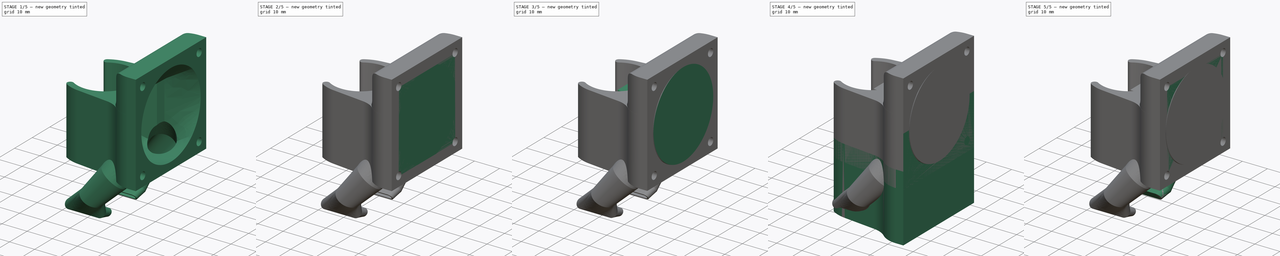
[diagram: build sequence overview — one tinted view per stage of 5, left to right]
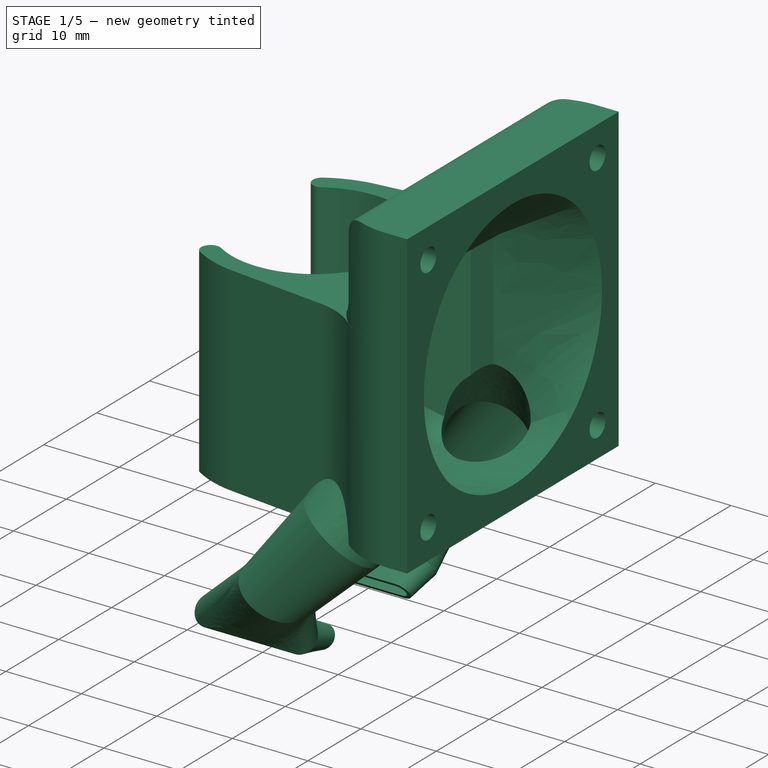
[diagram: stage 1 of 5 — iso view after this stage's code; geometry added in this stage tinted green]
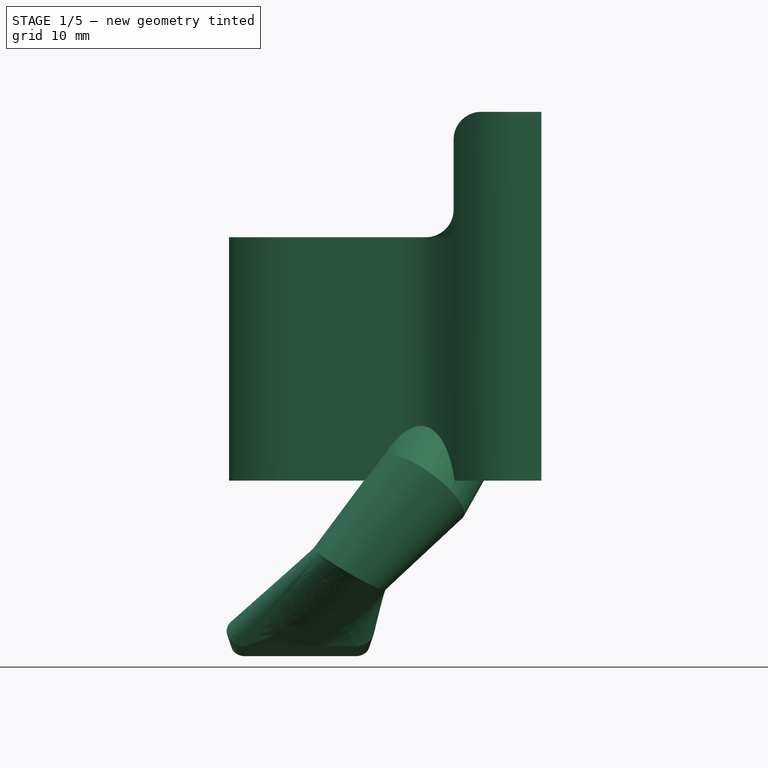
[diagram: stage 1 of 5 — front view after this stage's code; geometry added in this stage tinted green]
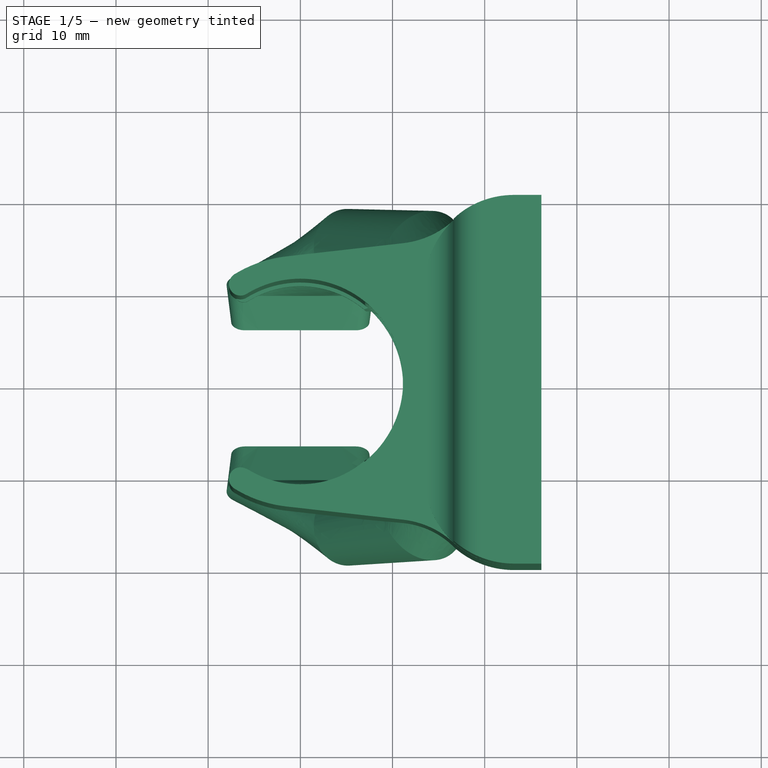
[diagram: stage 1 of 5 — top view after this stage's code; geometry added in this stage tinted green]
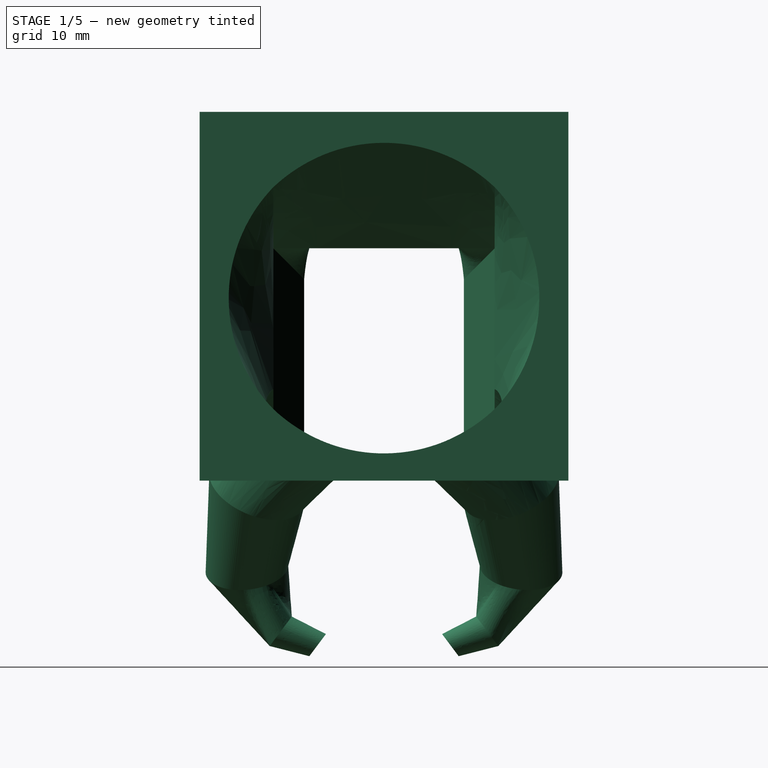
[diagram: stage 1 of 5 — right view after this stage's code; geometry added in this stage tinted green]
FCSTD DOCUMENT  (FreeCAD 0.15R4532 (Git))
Label: E3Dv6_40mmDuctedShroud_V2
License: CC-BY 3.0
LicenseURL: http://creativecommons.org/licenses/by/3.0/
objects: Part::Feature×19, Sketcher::SketchObject×18, Part::MultiFuse×7, App::DocumentObjectGroup×6, Part::Cut×5, PartDesign::Pad×3, Part::Loft×3, PartDesign::Fillet×1, PartDesign::Pocket×1
note: 61 computed .brp shape members not serialized (recipe doc carries the construction recipe); baked Part::Feature solids carry a one-line shape summary decoded from their .brp

FEATURE [App::DocumentObjectGroup] Group004  label="Duct+RightNozzle"
  Group = -> [Cut002]
FEATURE [Part::Feature] Part__Mirroring005  label="LeftNozzleOuter002"
  shape: bbox 32.47 x 24.49 x 37.15 mm, 46 faces (baked)
FEATURE [Part::Feature] Loft009  label="RightNozzleOuter002"
  shape: bbox 32.47 x 24.49 x 37.15 mm, 46 faces (baked)
FEATURE [Part::Feature] Part__Mirroring006  label="LeftNozzleInner002"
  shape: bbox 31.53 x 23.47 x 36.35 mm, 46 faces (baked)
FEATURE [Part::Feature] Loft010  label="RightNozzleInner002"
  shape: bbox 31.53 x 23.47 x 36.35 mm, 46 faces (baked)
FEATURE [Part::Feature] Pocket004  label="MainBlock007"
  shape: bbox 33.89 x 40 x 40 mm, 36 faces (baked)
FEATURE [Part::Feature] Loft011  label="MainOpening004"
  shape: bbox 20.5 x 34.77 x 37.37 mm, 24 faces (baked)
FEATURE [Part::MultiFuse] Fusion005
  Shapes = -> [Part__Mirroring005,Loft009,Pocket004]
FEATURE [Part::Cut] Cut003
  Base = -> Fusion005
  Tool = -> Loft011
FEATURE [Part::MultiFuse] Fusion006
  Shapes = -> [Part__Mirroring006,Loft010]
FEATURE [Part::Cut] Cut004  label="Duct+DualNozzle001"
  Base = -> Cut003
  Tool = -> Fusion006
FEATURE [App::DocumentObjectGroup] Group005  label="Duct+DualNozzle"
  Group = -> [Cut004]
FEATURE [Part::Feature] Part__Mirroring007  label="LeftNozzleInner"
  shape: bbox 31.53 x 23.47 x 36.35 mm, 46 faces (baked)
FEATURE [Part::Feature] Part__Mirroring008  label="LeftNozzleOuter"
  shape: bbox 33.69 x 25.68 x 38.16 mm, 46 faces (baked)
FEATURE [App::DocumentObjectGroup] Group  label="BaseParts"
  Group = -> [Loft003,Loft002,Group001,Pocket,Loft,Part__Mirroring007,Part__Mirroring008]
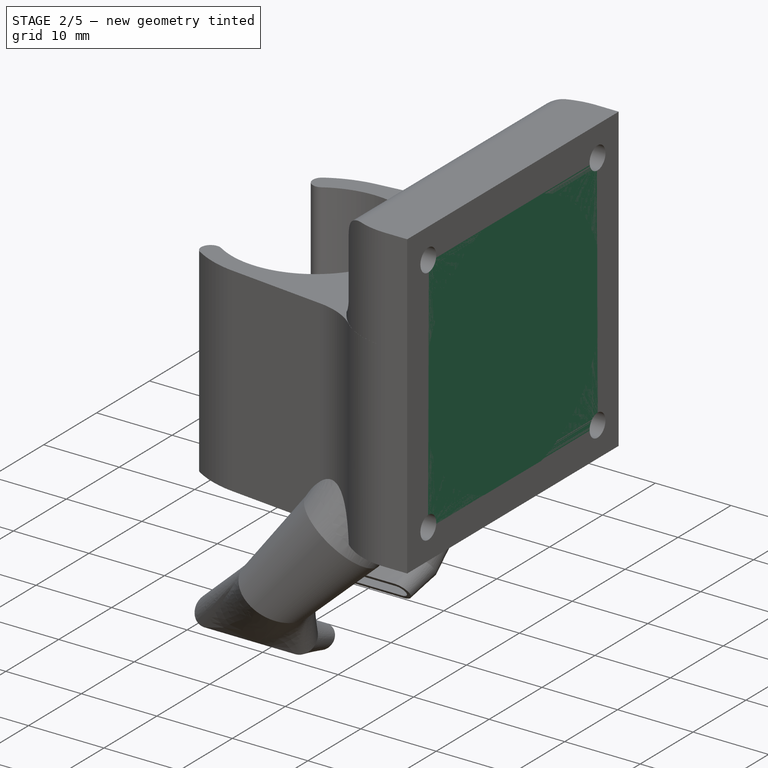
[diagram: stage 2 of 5 — iso view after this stage's code; geometry added in this stage tinted green]
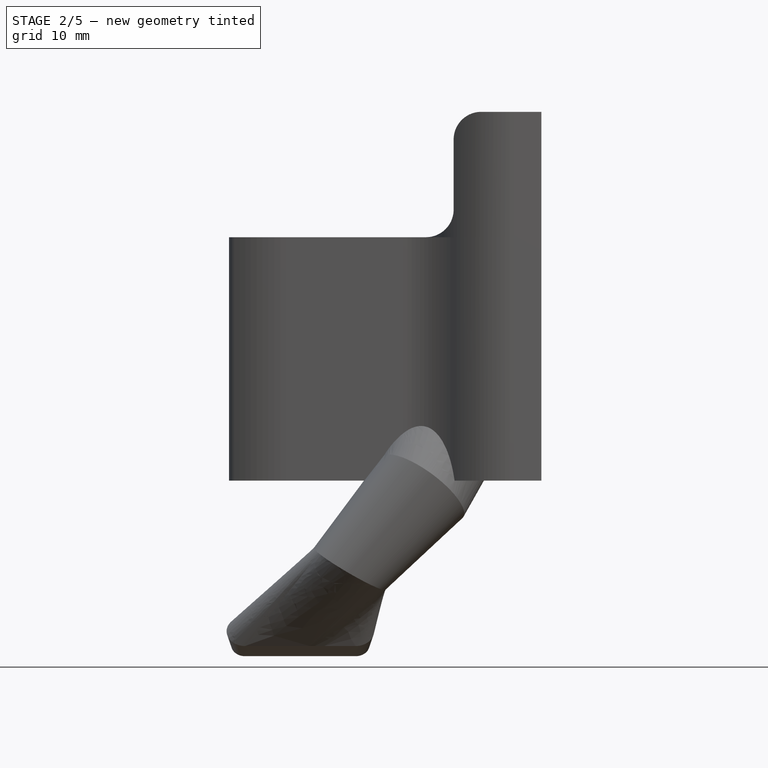
[diagram: stage 2 of 5 — front view after this stage's code; geometry added in this stage tinted green]
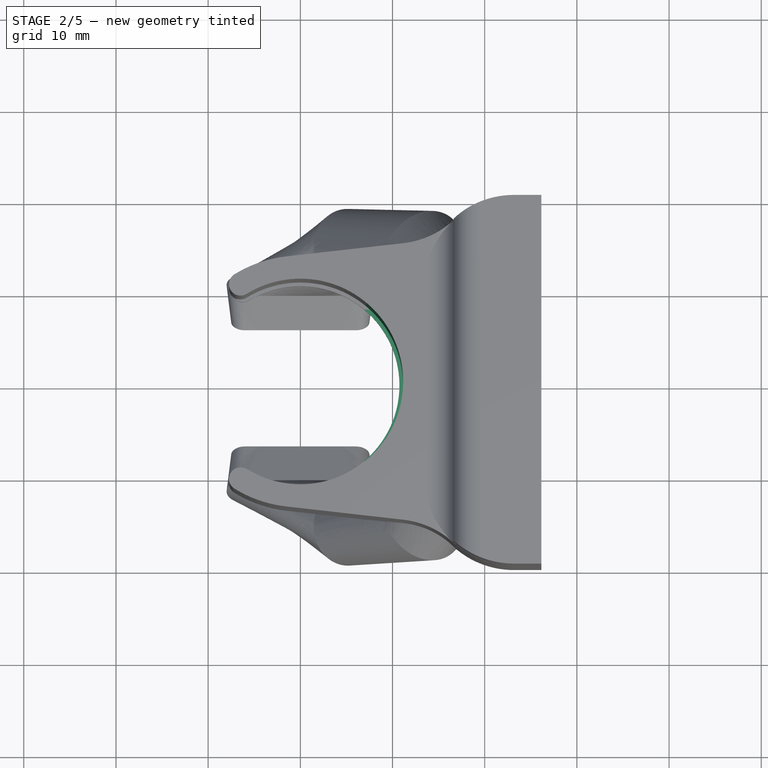
[diagram: stage 2 of 5 — top view after this stage's code; geometry added in this stage tinted green]
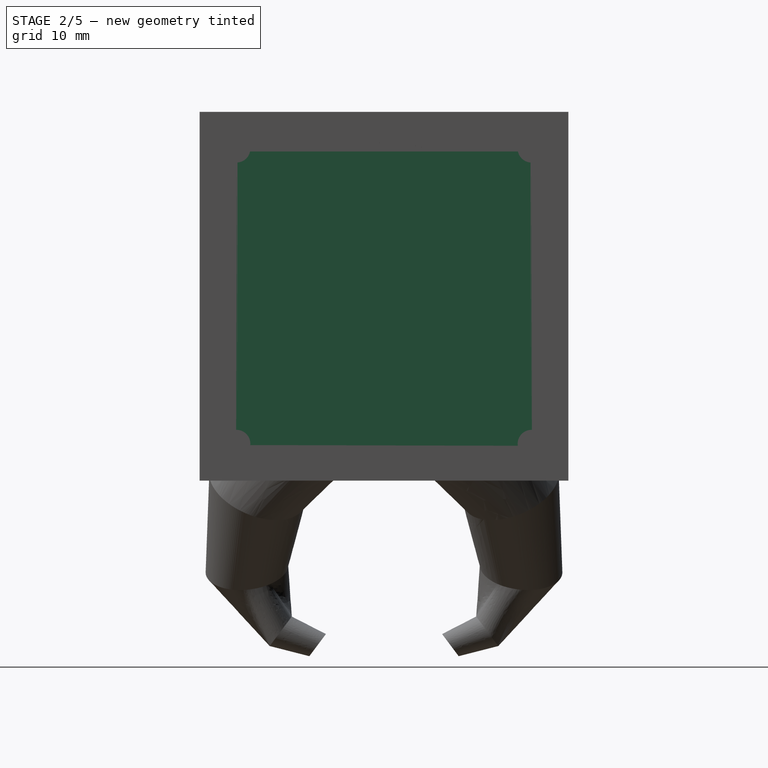
[diagram: stage 2 of 5 — right view after this stage's code; geometry added in this stage tinted green]
FEATURE [Part::MultiFuse] Fusion002
  Shapes = -> [Part__Mirroring004,Pocket002]
FEATURE [App::DocumentObjectGroup] Group003  label="Duct+LeftNozzle"
  Group = -> [Cut001]
FEATURE [Part::Feature] Loft006  label="MainOpening003"
  shape: bbox 20.5 x 34.77 x 37.37 mm, 24 faces (baked)
FEATURE [Part::Feature] Pocket003  label="MainBlock006"
  shape: bbox 33.89 x 40 x 40 mm, 36 faces (baked)
FEATURE [Part::Feature] Loft007  label="RightNozzleInner001"
  shape: bbox 31.53 x 23.47 x 36.35 mm, 46 faces (baked)
FEATURE [Part::Feature] Loft008  label="RightNozzleOuter001"
  shape: bbox 32.47 x 24.49 x 37.15 mm, 46 faces (baked)
FEATURE [Part::MultiFuse] Fusion003
  Shapes = -> [Loft006,Loft007]
FEATURE [Part::MultiFuse] Fusion004
  Shapes = -> [Loft008,Pocket003]
FEATURE [Part::Cut] Cut002  label="Duct+RightNozzle001"
  Base = -> Fusion004
  Tool = -> Fusion003
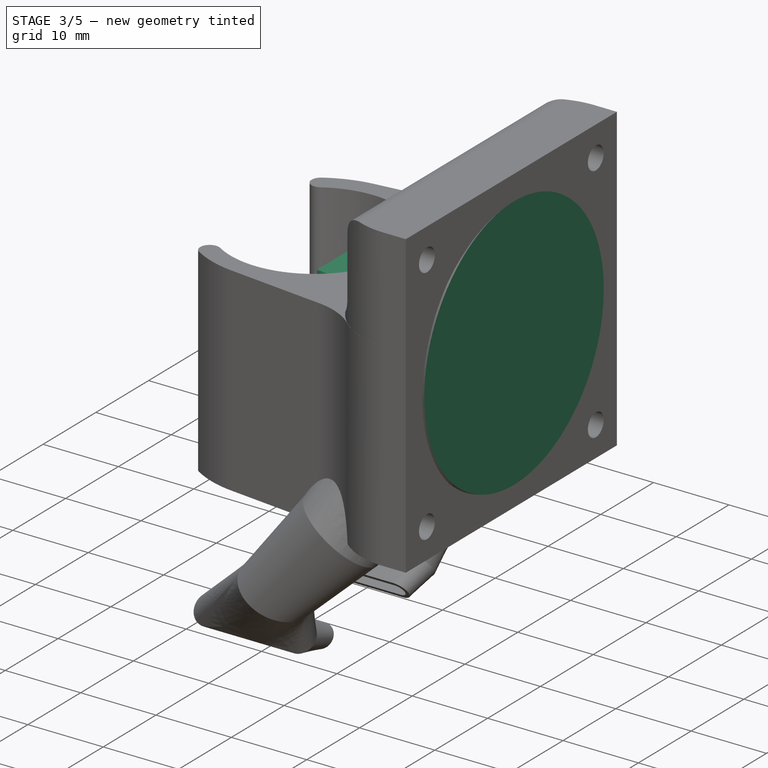
[diagram: stage 3 of 5 — iso view after this stage's code; geometry added in this stage tinted green]
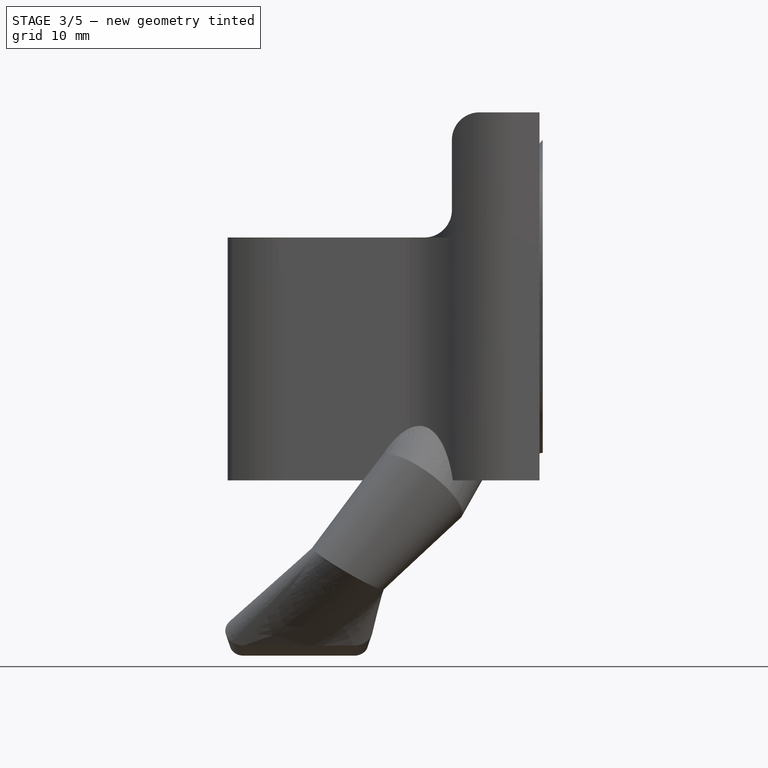
[diagram: stage 3 of 5 — front view after this stage's code; geometry added in this stage tinted green]
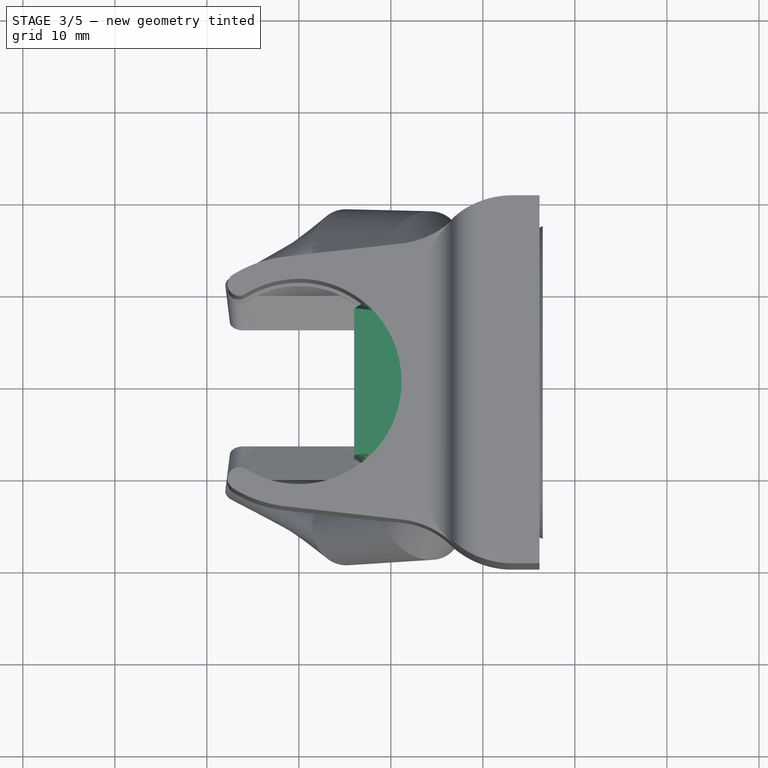
[diagram: stage 3 of 5 — top view after this stage's code; geometry added in this stage tinted green]
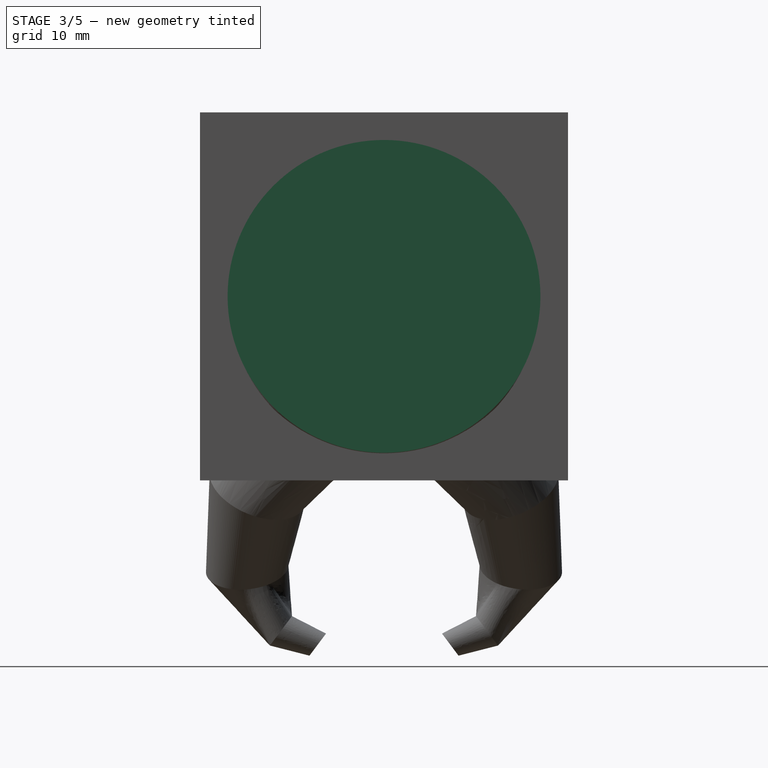
[diagram: stage 3 of 5 — right view after this stage's code; geometry added in this stage tinted green]
FEATURE [Part::Feature] Pocket001  label="MainBlock004"
  shape: bbox 33.89 x 40 x 40 mm, 36 faces (baked)
FEATURE [Sketcher::SketchObject] Sketch004
  Placement = pos=(26.5,0,0) rot=(0.57735,0.57735,0.57735;2.0944rad)
  sketch-geometry (1):
    g0: Circle CenterX=0 CenterY=20 CenterZ=0 NormalX=0 NormalY=0 NormalZ=1 Radius=17
  constraints (3):
    c: PointOnObject(g0,g-2)
    c: DistanceY(g0) = 20
    c: Radius(g0) = 17
FEATURE [Sketcher::SketchObject] Sketch030
  Placement = pos=(15.15,0,0) rot=(0.57735,0.57735,0.57735;2.0944rad)
  sketch-geometry (5):
    g0: Circle [constr] CenterX=0 CenterY=13.2 CenterZ=0 NormalX=0 NormalY=0 NormalZ=1 Radius=12
    g1: LineSegment StartX=-12 StartY=25.2 StartZ=0 EndX=12 EndY=25.2 EndZ=0
    g2: LineSegment StartX=12 StartY=25.2 StartZ=0 EndX=12 EndY=1.2 EndZ=0
    g3: LineSegment StartX=12 StartY=1.2 StartZ=0 EndX=-12 EndY=1.2 EndZ=0
    g4: LineSegment StartX=-12 StartY=1.2 StartZ=0 EndX=-12 EndY=25.2 EndZ=0
  constraints (15):
    c: PointOnObject(g0,g-2)
    c: DistanceY(g0) = 13.2
    c: Radius(g0) = 12
    c: Coincident(g1,g2)
    c: Coincident(g2,g3)
    c: Coincident(g3,g4)
    c: Coincident(g4,g1)
    c: Horizontal(g1)
    c: Horizontal(g3)
    c: Vertical(g2)
    c: Vertical(g4)
    c: Tangent(g2,g0)
    c: Tangent(g3,g0)
    c: Tangent(g4,g0)
    c: Tangent(g1,g0)
FEATURE [Part::Loft] Loft  label="MainOpening"
  Closed = false
  Placement = pos=(0,0,19.75) rot=(0,0,1;0rad)
  Ruled = true
  Sections = -> [Sketch006,Sketch003,Sketch030,Sketch004]
  Solid = true
FEATURE [Part::Feature] Loft004  label="MainOpening001"
  shape: bbox 20.5 x 34.77 x 37.37 mm, 24 faces (baked)
FEATURE [Part::Cut] Cut  label="BasicDuct001"
  Base = -> Pocket001
  Tool = -> Loft004
FEATURE [App::DocumentObjectGroup] Group002  label="BasicDuct"
  Group = -> [Cut]
FEATURE [Part::Feature] Loft005  label="MainOpening002"
  shape: bbox 20.5 x 34.77 x 37.37 mm, 24 faces (baked)
FEATURE [Part::Feature] Pocket002  label="MainBlock005"
  shape: bbox 33.89 x 40 x 40 mm, 36 faces (baked)
FEATURE [Part::Feature] Part__Mirroring003  label="LeftNozzleInner001"
  shape: bbox 31.53 x 23.47 x 36.35 mm, 46 faces (baked)
FEATURE [Part::Feature] Part__Mirroring004  label="LeftNozzleOuter001"
  shape: bbox 32.47 x 24.49 x 37.15 mm, 46 faces (baked)
FEATURE [Part::MultiFuse] Fusion001
  Shapes = -> [Loft005,Part__Mirroring003]
FEATURE [Part::Cut] Cut001  label="Duct+LeftNozzle001"
  Base = -> Fusion002
  Tool = -> Fusion001
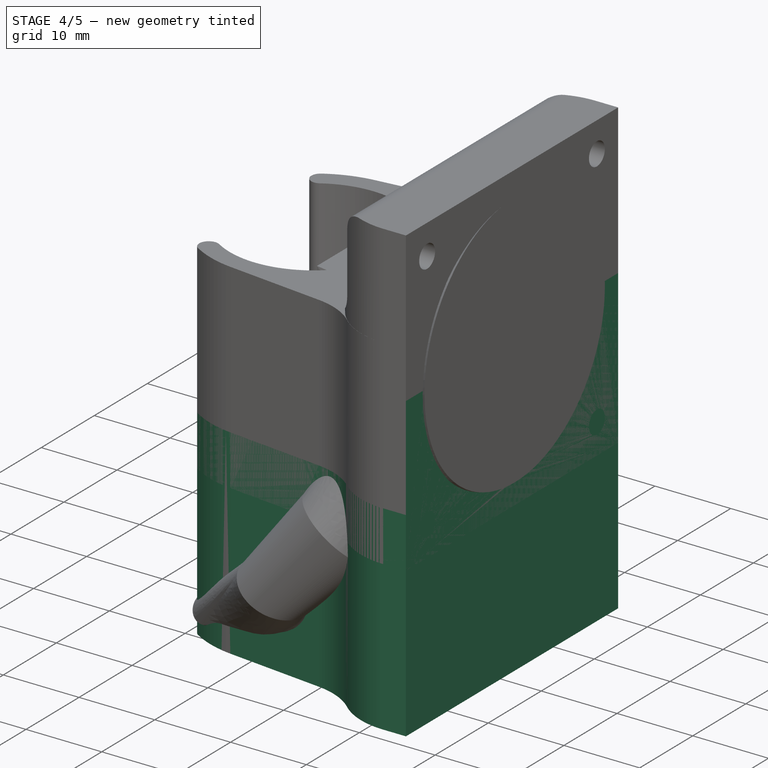
[diagram: stage 4 of 5 — iso view after this stage's code; geometry added in this stage tinted green]
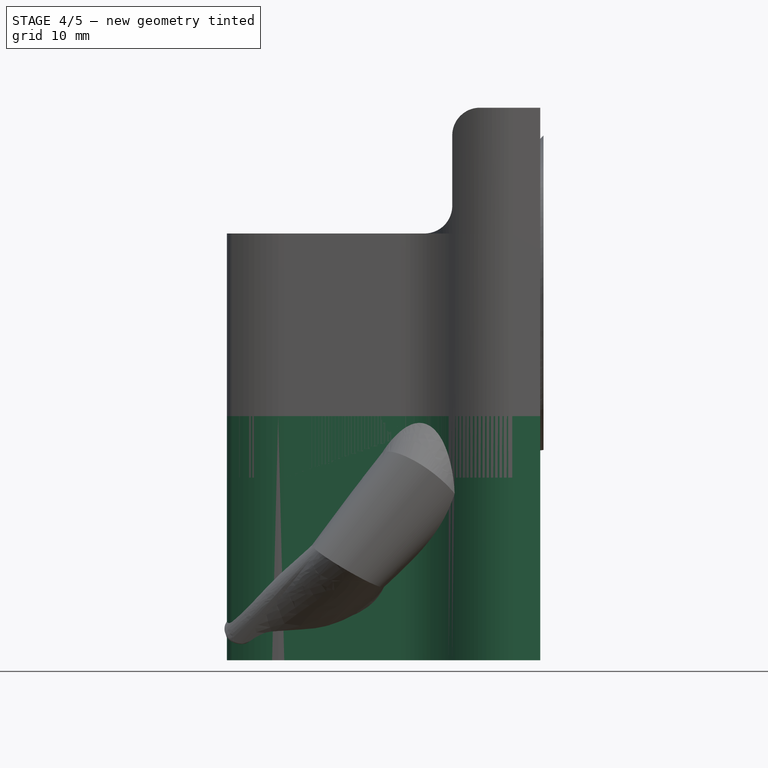
[diagram: stage 4 of 5 — front view after this stage's code; geometry added in this stage tinted green]
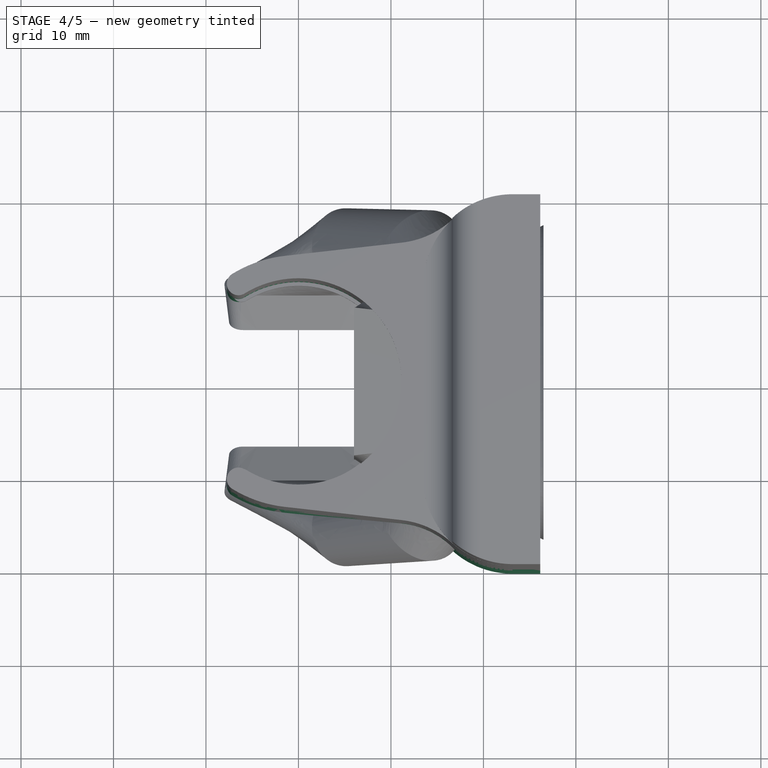
[diagram: stage 4 of 5 — top view after this stage's code; geometry added in this stage tinted green]
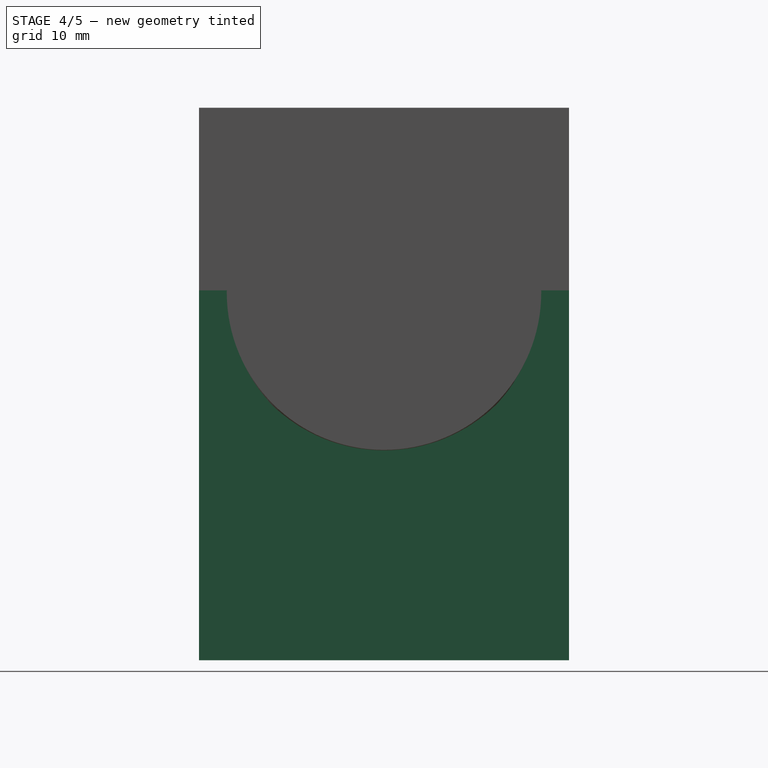
[diagram: stage 4 of 5 — right view after this stage's code; geometry added in this stage tinted green]
FEATURE [Part::Feature] Part__Feature  label="E3Dv6"
  Placement = pos=(0,0,41) rot=(1,0,0;1.5708rad)
  shape: bbox 26.65 x 22.3 x 62.3 mm, 111 faces (baked)
FEATURE [Sketcher::SketchObject] Sketch001  label="FinRib"
  Placement = pos=(0,0,1) rot=(0,0,1;0rad)
  sketch-geometry (5):
    g0: ArcOfCircle CenterX=0 CenterY=0 CenterZ=0 NormalX=0 NormalY=0 NormalZ=1 Radius=10.75 StartAngle=4.16142 EndAngle=8.40495
    g1: ArcOfCircle CenterX=-6.15126 CenterY=10.0112 CenterZ=0 NormalX=0 NormalY=0 NormalZ=1 Radius=1 StartAngle=2.12176 EndAngle=5.26336
    g2: ArcOfCircle CenterX=-6.15126 CenterY=-10.0112 CenterZ=0 NormalX=0 NormalY=0 NormalZ=1 Radius=1 StartAngle=1.01983 EndAngle=4.16141
    g3: LineSegment [constr] StartX=-5.62775 StartY=9.1592 StartZ=0 EndX=-5.62775 EndY=-9.1592 EndZ=0
    g4: ArcOfCircle CenterX=0 CenterY=0 CenterZ=0 NormalX=0 NormalY=0 NormalZ=1 Radius=12.75 StartAngle=4.16142 EndAngle=8.40495
  constraints (16):
    c: Radius(g0) = 10.75
    c: Tangent(g0,g1)
    c: Coincident(g2,g0)
    c: Tangent(g2,g0)
    c: Coincident(g3,g0)
    c: Vertical(g3)
    c: Distance(g3) = 18.3184
    c: Coincident(g0,g-1)
    c: Coincident(g3,g0)
    c: Coincident(g1,g0)
    c: Coincident(g4,g-1)
    c: Coincident(g4,g1)
    c: Coincident(g4,g2)
    c: Radius(g2) = 1
    c: Tangent(g1,g4)
    c: Tangent(g2,g4)
FEATURE [Sketcher::SketchObject] Sketch  label="MainBody"
  sketch-geometry (17):
    g0: ArcOfCircle CenterX=0 CenterY=0 CenterZ=0 NormalX=0 NormalY=0 NormalZ=1 Radius=11.15 StartAngle=4.16142 EndAngle=8.40495
    g1: ArcOfCircle CenterX=0 CenterY=0 CenterZ=0 NormalX=0 NormalY=0 NormalZ=1 Radius=13.6506 StartAngle=1.68355 EndAngle=2.12176
    g2: ArcOfCircle CenterX=0 CenterY=0 CenterZ=0 NormalX=0 NormalY=0 NormalZ=1 Radius=13.6494 StartAngle=4.16142 EndAngle=4.59962
    g3: ArcOfCircle CenterX=-6.4917 CenterY=10.5653 CenterZ=0 NormalX=0 NormalY=0 NormalZ=1 Radius=1.2503 StartAngle=2.12176 EndAngle=5.26335
    g4: ArcOfCircle CenterX=-6.49138 CenterY=-10.5648 CenterZ=0 NormalX=0 NormalY=0 NormalZ=1 Radius=1.24969 StartAngle=1.01984 EndAngle=4.16142
    g5: LineSegment [constr] StartX=-1.53594 StartY=13.5639 StartZ=0 EndX=-1.53594 EndY=-13.5627 EndZ=0
    g6: LineSegment StartX=-1.53594 StartY=13.5639 StartZ=0 EndX=11.151 EndY=15.0006 EndZ=0
    g7: LineSegment StartX=-1.53594 StartY=-13.5627 StartZ=0 EndX=11.151 EndY=-14.9994 EndZ=0
    g8: LineSegment [constr] StartX=11.151 StartY=15.0006 StartZ=0 EndX=11.151 EndY=-14.9994 EndZ=0
    g9: ArcOfCircle CenterX=10.0557 CenterY=24.6735 CenterZ=0 NormalX=0 NormalY=0 NormalZ=1 Radius=9.73477 StartAngle=4.82515 EndAngle=5.45005
    g10: ArcOfCircle CenterX=23.1502 CenterY=10.2652 CenterZ=0 NormalX=0 NormalY=0 NormalZ=1 Radius=9.73477 StartAngle=1.5708 EndAngle=2.30846
    g11: ArcOfCircle CenterX=10.0556 CenterY=-24.6724 CenterZ=0 NormalX=0 NormalY=0 NormalZ=1 Radius=9.73477 StartAngle=0.833047 EndAngle=1.45803
    g12: ArcOfCircle CenterX=23.1513 CenterY=-10.2652 CenterZ=0 NormalX=0 NormalY=0 NormalZ=1 Radius=9.73477 StartAngle=3.97464 EndAngle=4.71227
    g13: LineSegment StartX=26.1501 StartY=20 StartZ=0 EndX=26.1501 EndY=-20 EndZ=0
    g14: LineSegment StartX=26.1501 StartY=-20 StartZ=0 EndX=23.1501 EndY=-20 EndZ=0
    g15: LineSegment StartX=26.1501 StartY=20 StartZ=0 EndX=23.1501 EndY=20 EndZ=0
    g16: LineSegment [constr] StartX=-7.14624 StartY=11.6306 StartZ=0 EndX=-7.14561 EndY=-11.6295 EndZ=0
  constraints (49):
    c: Coincident(g0,g-1)
    c: Radius(g0) = 11.15
    c: Coincident(g1,g-1)
    c: Coincident(g2,g-1)
    c: Coincident(g3,g1)
    c: Coincident(g3,g0)
    c: Tangent(g1,g3)
    c: Tangent(g0,g3)
    c: Coincident(g4,g0)
    c: Coincident(g4,g2)
    c: Tangent(g4,g0)
    c: Tangent(g4,g2)
    c: Coincident(g5,g1)
    c: Coincident(g5,g2)
    c: Vertical(g5)
    c: Coincident(g6,g1)
    c: Tangent(g1,g6)
    c: Coincident(g7,g2)
    c: Tangent(g7,g2)
    c: Coincident(g8,g6)
    c: Coincident(g8,g7)
    c: Vertical(g8)
    c: Coincident(g9,g6)
    c: Tangent(g9,g6)
    c: Coincident(g10,g9)
    c: Tangent(g10,g9)
    c: Coincident(g11,g7)
    c: Tangent(g11,g7)
    c: Coincident(g12,g11)
    c: Tangent(g12,g11)
    c: Vertical(g13)
    c: Symmetric(g13,g13,g-1)
    c: Distance(g13) = 40
    c: Equal(g9,g10)
    c: Equal(g11,g12)
    c: Coincident(g14,g13)
    c: Horizontal(g14)
    c: Distance(g14) = 3
    c: Coincident(g12,g14)
    c: Coincident(g15,g13)
    c: Horizontal(g15)
    c: Distance(g15) = 3
    c: Coincident(g10,g15)
    c: Equal(g10,g12)
    c: Distance(g8) = 30
    c: Distance(g5) = 27.1266
    c: Coincident(g16,g1)
    c: Coincident(g16,g2)
    c: Distance(g16) = 23.2601
FEATURE [PartDesign::Pad] Pad
  Length = 26.4
  Length2 = 100
  Sketch = -> Sketch
  Type = 0
FEATURE [PartDesign::Pad] Pad001
  Length = 1.4
  Length2 = 100
  Placement = pos=(0,0,1) rot=(0,0,1;0rad)
  Sketch = -> Sketch001
  Type = 0
FEATURE [Sketcher::SketchObject] Sketch003
  Placement = pos=(12.15,0,0) rot=(0.57735,0.57735,0.57735;2.0944rad)
  sketch-geometry (5):
    g0: Circle [constr] CenterX=0 CenterY=13.2 CenterZ=0 NormalX=0 NormalY=0 NormalZ=1 Radius=12
    g1: LineSegment StartX=-12 StartY=25.2 StartZ=0 EndX=12 EndY=25.2 EndZ=0
    g2: LineSegment StartX=12 StartY=25.2 StartZ=0 EndX=12 EndY=1.2 EndZ=0
    g3: LineSegment StartX=12 StartY=1.2 StartZ=0 EndX=-12 EndY=1.2 EndZ=0
    g4: LineSegment StartX=-12 StartY=1.2 StartZ=0 EndX=-12 EndY=25.2 EndZ=0
  constraints (15):
    c: PointOnObject(g0,g-2)
    c: DistanceY(g0) = 13.2
    c: Radius(g0) = 12
    c: Coincident(g1,g2)
    c: Coincident(g2,g3)
    c: Coincident(g3,g4)
    c: Coincident(g4,g1)
    c: Horizontal(g1)
    c: Horizontal(g3)
    c: Vertical(g2)
    c: Vertical(g4)
    c: Tangent(g2,g0)
    c: Tangent(g3,g0)
    c: Tangent(g4,g0)
    c: Tangent(g1,g0)
FEATURE [Sketcher::SketchObject] Sketch005  label="MainBody001"
  Placement = pos=(0,0,26.4) rot=(0,0,1;0rad)
  Support = -> Pad [Face16]
  sketch-geometry (18):
    g0: ArcOfCircle [constr] CenterX=0 CenterY=0 CenterZ=0 NormalX=0 NormalY=0 NormalZ=1 Radius=11.15 StartAngle=4.16146 EndAngle=8.4049
    g1: ArcOfCircle [constr] CenterX=0 CenterY=0 CenterZ=0 NormalX=0 NormalY=0 NormalZ=1 Radius=13.6496 StartAngle=1.68332 EndAngle=2.12172
    g2: ArcOfCircle [constr] CenterX=0 CenterY=0 CenterZ=0 NormalX=0 NormalY=0 NormalZ=1 Radius=13.6496 StartAngle=4.16146 EndAngle=4.59987
    g3: ArcOfCircle [constr] CenterX=-6.49095 CenterY=10.5652 CenterZ=0 NormalX=0 NormalY=0 NormalZ=1 Radius=1.2498 StartAngle=2.12172 EndAngle=5.26331
    g4: ArcOfCircle [constr] CenterX=-6.491 CenterY=-10.5651 CenterZ=0 NormalX=0 NormalY=0 NormalZ=1 Radius=1.24982 StartAngle=1.01987 EndAngle=4.16146
    g5: LineSegment [constr] StartX=-1.53264 StartY=13.5633 StartZ=0 EndX=-1.53264 EndY=-13.5633 EndZ=0
    g6: LineSegment [constr] StartX=-1.53264 StartY=13.5633 StartZ=0 EndX=11.1816 EndY=15 EndZ=0
    g7: LineSegment [constr] StartX=-1.53264 StartY=-13.5633 StartZ=0 EndX=11.1816 EndY=-15 EndZ=0
    g8: LineSegment [constr] StartX=11.1816 StartY=15 StartZ=0 EndX=11.1816 EndY=-15 EndZ=0
    g9: ArcOfCircle [constr] CenterX=10.0909 CenterY=24.6521 CenterZ=0 NormalX=0 NormalY=0 NormalZ=1 Radius=9.71351 StartAngle=4.82491 EndAngle=5.45091
    g10: ArcOfCircle CenterX=23.1691 CenterY=10.2865 CenterZ=0 NormalX=0 NormalY=0 NormalZ=1 Radius=9.71351 StartAngle=1.57276 EndAngle=2.30932
    g11: ArcOfCircle [constr] CenterX=10.0909 CenterY=-24.6521 CenterZ=0 NormalX=0 NormalY=0 NormalZ=1 Radius=9.71351 StartAngle=0.832274 EndAngle=1.45827
    g12: ArcOfCircle CenterX=23.1691 CenterY=-10.2865 CenterZ=0 NormalX=0 NormalY=0 NormalZ=1 Radius=9.71351 StartAngle=3.97387 EndAngle=4.71043
    g13: LineSegment StartX=26.1501 StartY=20 StartZ=0 EndX=26.1501 EndY=-20 EndZ=0
    g14: LineSegment StartX=26.1501 StartY=-20 StartZ=0 EndX=23.1501 EndY=-20 EndZ=0
    g15: LineSegment StartX=26.1501 StartY=20 StartZ=0 EndX=23.1501 EndY=20 EndZ=0
    g16: LineSegment [constr] StartX=-7.14519 StartY=11.63 StartZ=0 EndX=-7.14525 EndY=-11.63 EndZ=0
    g17: LineSegment StartX=16.63 StartY=17.4693 StartZ=0 EndX=16.63 EndY=-17.4693 EndZ=0
  constraints (52):
    c: Coincident(g0,g-1)
    c: Radius(g0) = 11.15
    c: Coincident(g1,g-1)
    c: Coincident(g2,g-1)
    c: Coincident(g3,g1)
    c: Coincident(g3,g0)
    c: Tangent(g1,g3)
    c: Tangent(g0,g3)
    c: Coincident(g4,g0)
    c: Coincident(g4,g2)
    c: Tangent(g4,g0)
    c: Tangent(g4,g2)
    c: Coincident(g5,g1)
    c: Coincident(g5,g2)
    c: Vertical(g5)
    c: Coincident(g6,g1)
    c: Tangent(g1,g6)
    c: Coincident(g7,g2)
    c: Tangent(g7,g2)
    c: Coincident(g8,g6)
    c: Coincident(g8,g7)
    c: Vertical(g8)
    c: Coincident(g9,g6)
    c: Tangent(g9,g6)
    c: Coincident(g10,g9)
    c: Tangent(g10,g9)
    c: Coincident(g11,g7)
    c: Tangent(g11,g7)
    c: Coincident(g12,g11)
    c: Tangent(g12,g11)
    c: Vertical(g13)
    c: Symmetric(g13,g13,g-1)
    c: Distance(g13) = 40
    c: Equal(g9,g10)
    c: Equal(g11,g12)
    c: Coincident(g14,g13)
    c: Horizontal(g14)
    c: Distance(g14) = 3
    c: Coincident(g12,g14)
    c: Coincident(g15,g13)
    c: Horizontal(g15)
    c: Distance(g15) = 3
    c: Coincident(g10,g15)
    c: Equal(g10,g12)
    c: Distance(g8) = 30
    c: Distance(g5) = 27.1266
    c: Coincident(g16,g1)
    c: Coincident(g16,g2)
    c: Distance(g16) = 23.2601
    c: Coincident(g17,g9)
    c: Coincident(g17,g11)
    c: Vertical(g17)
FEATURE [PartDesign::Pad] Pad002
  Length = 13.6
  Length2 = 100
  Sketch = -> Sketch005
  Type = 0
FEATURE [PartDesign::Fillet] Fillet
  Base = -> Pad002 [Edge50,Edge27]
  Radius = 3
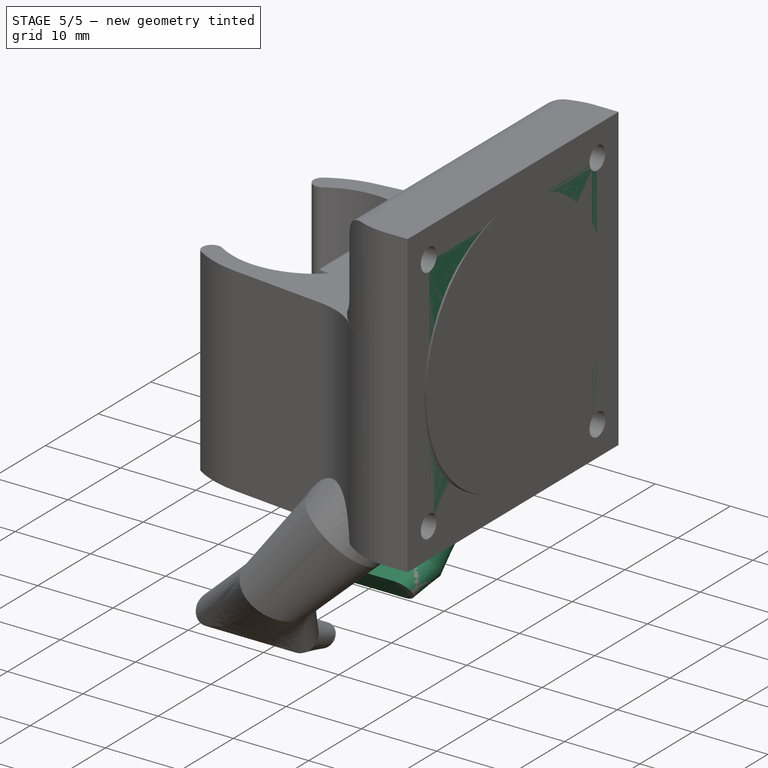
[diagram: stage 5 of 5 — iso view after this stage's code; geometry added in this stage tinted green]
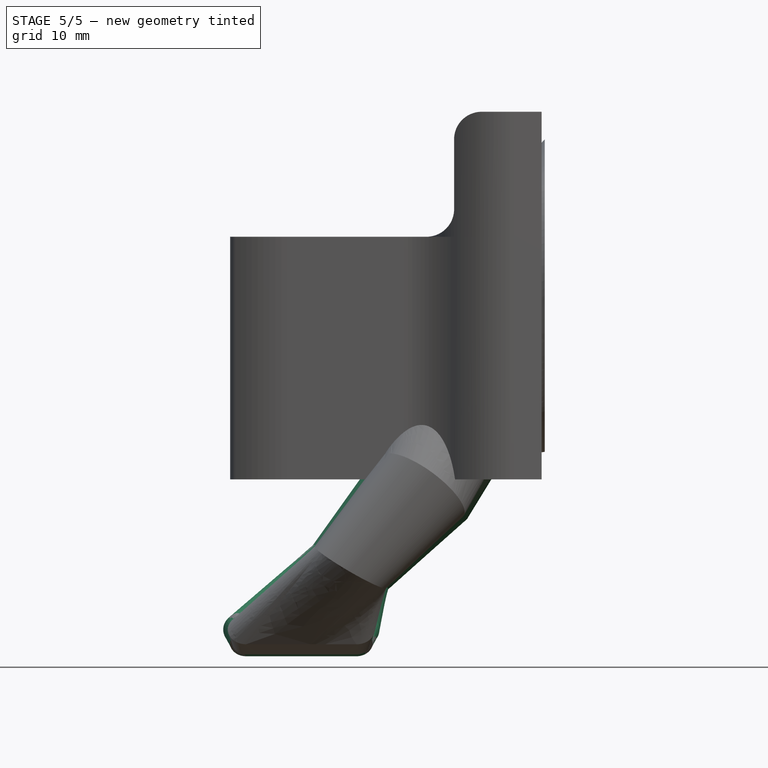
[diagram: stage 5 of 5 — front view after this stage's code; geometry added in this stage tinted green]
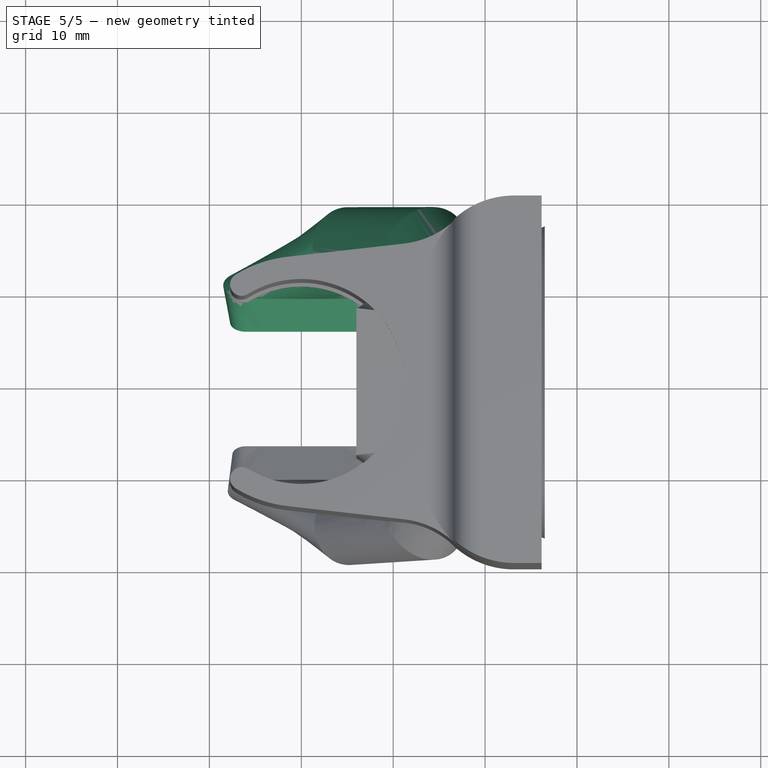
[diagram: stage 5 of 5 — top view after this stage's code; geometry added in this stage tinted green]
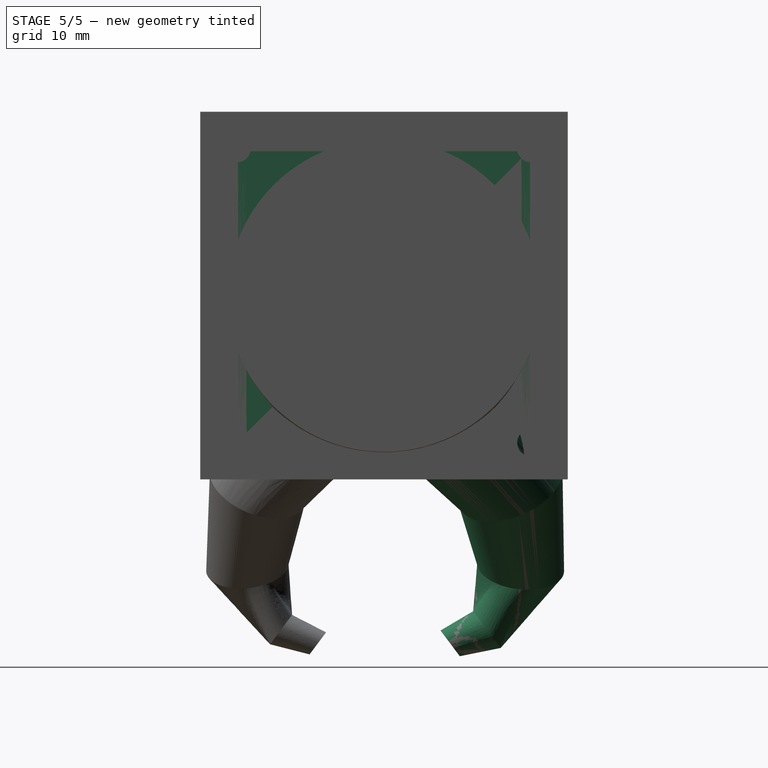
[diagram: stage 5 of 5 — right view after this stage's code; geometry added in this stage tinted green]
FEATURE [Sketcher::SketchObject] Sketch006
  Placement = pos=(6,0,0) rot=(0.57735,0.57735,0.57735;2.0944rad)
  sketch-geometry (4):
    g0: LineSegment StartX=-8 StartY=26.4 StartZ=0 EndX=-8 EndY=0 EndZ=0
    g1: LineSegment StartX=8 StartY=26.4 StartZ=0 EndX=8 EndY=0 EndZ=0
    g2: LineSegment StartX=-8 StartY=26.4 StartZ=0 EndX=8 EndY=26.4 EndZ=0
    g3: LineSegment StartX=-8 StartY=0 StartZ=0 EndX=8 EndY=0 EndZ=0
  constraints (12):
    c: Vertical(g0)
    c: Horizontal(g2)
    c: Horizontal(g3)
    c: Symmetric(g1,g0,g-2)
    c: DistanceX(g1) = 8
    c: PointOnObject(g1,g-1)
    c: Coincident(g3,g1)
    c: Coincident(g3,g0)
    c: Coincident(g2,g0)
    c: DistanceY(g0) = 26.4
    c: Coincident(g1,g2)
    c: Vertical(g1)
FEATURE [Part::MultiFuse] Fusion  label="MainBlock"
  Placement = pos=(0,0,19.75) rot=(0,0,1;0rad)
  Shapes = -> [Fillet,Pad001]
FEATURE [Sketcher::SketchObject] Sketch014
  Placement = pos=(0,13,1) rot=(0,0.447214,0.894427;3.14159rad)
  sketch-geometry (4):
    g0: ArcOfCircle CenterX=-6 CenterY=3 CenterZ=0 NormalX=0 NormalY=0 NormalZ=1 Radius=1.5 StartAngle=1.5708 EndAngle=4.71239
    g1: ArcOfCircle CenterX=6 CenterY=3 CenterZ=0 NormalX=0 NormalY=0 NormalZ=1 Radius=1.5 StartAngle=4.71239 EndAngle=7.85398
    g2: LineSegment StartX=-6 StartY=1.5 StartZ=0 EndX=6 EndY=1.5 EndZ=0
    g3: LineSegment StartX=-6 StartY=4.5 StartZ=0 EndX=6 EndY=4.5 EndZ=0
  constraints (14):
    c: Tangent(g0,g2)
    c: Tangent(g0,g3)
    c: Tangent(g1,g2)
    c: Tangent(g1,g3)
    c: Coincident(g0,g3)
    c: Coincident(g0,g2)
    c: Coincident(g2,g1)
    c: Coincident(g3,g1)
    c: Horizontal(g2)
    c: Equal(g0,g1)
    c: DistanceX(g0) = -6
    c: DistanceY(g0) = 3
    c: Radius(g0) = 1.5
    c: DistanceX(g0,g1) = 12
FEATURE [Sketcher::SketchObject] Sketch015
  Placement = pos=(0,9,-0.5) rot=(0,0.447214,0.894427;3.14159rad)
  sketch-geometry (4):
    g0: ArcOfCircle CenterX=-6 CenterY=3 CenterZ=0 NormalX=0 NormalY=0 NormalZ=1 Radius=1 StartAngle=1.5708 EndAngle=4.71239
    g1: ArcOfCircle CenterX=6 CenterY=3 CenterZ=0 NormalX=0 NormalY=0 NormalZ=1 Radius=1 StartAngle=4.71239 EndAngle=7.85398
    g2: LineSegment StartX=-6 StartY=2 StartZ=0 EndX=6 EndY=2 EndZ=0
    g3: LineSegment StartX=-6 StartY=4 StartZ=0 EndX=6 EndY=4 EndZ=0
  constraints (14):
    c: Tangent(g0,g2)
    c: Tangent(g0,g3)
    c: Tangent(g1,g2)
    c: Tangent(g1,g3)
    c: Coincident(g0,g3)
    c: Coincident(g0,g2)
    c: Coincident(g2,g1)
    c: Coincident(g3,g1)
    c: Horizontal(g2)
    c: Equal(g0,g1)
    c: DistanceX(g0) = -6
    c: DistanceY(g0) = 3
    c: Radius(g0) = 1
    c: DistanceX(g0,g1) = 12
FEATURE [Sketcher::SketchObject] Sketch016
  Placement = pos=(12,-17,10) rot=(0,0.816497,0.57735;0.663225rad)
  sketch-geometry (1):
    g0: Circle CenterX=6 CenterY=32 CenterZ=0 NormalX=0 NormalY=0 NormalZ=1 Radius=4
  constraints (1):
    c: Radius(g0) = 4
FEATURE [Sketcher::SketchObject] Sketch017
  Placement = pos=(19,-14,3) rot=(0.57735,0.57735,0.57735;0.872665rad)
  sketch-geometry (1):
    g0: Circle CenterX=6 CenterY=32 CenterZ=0 NormalX=0 NormalY=0 NormalZ=1 Radius=5
  constraints (1):
    c: Radius(g0) = 5
FEATURE [Sketcher::SketchObject] Sketch018
  Placement = pos=(26,-23,11) rot=(0.57735,0.57735,0.57735;1.13446rad)
  sketch-geometry (1):
    g0: Circle CenterX=7 CenterY=33 CenterZ=0 NormalX=0 NormalY=0 NormalZ=1 Radius=6.5
  constraints (1):
    c: Radius(g0) = 6.5
FEATURE [Part::Loft] Loft002  label="RightNozzleInner"
  Closed = false
  Ruled = true
  Sections = -> [Sketch018,Sketch017,Sketch016,Sketch014,Sketch015]
  Solid = true
FEATURE [Sketcher::SketchObject] Sketch019
  Placement = pos=(0,9,-0.5) rot=(0,0.447214,0.894427;3.14159rad)
  sketch-geometry (4):
    g0: ArcOfCircle CenterX=-6 CenterY=3 CenterZ=0 NormalX=0 NormalY=0 NormalZ=1 Radius=1.75 StartAngle=1.5708 EndAngle=4.71239
    g1: ArcOfCircle CenterX=6 CenterY=3 CenterZ=0 NormalX=0 NormalY=0 NormalZ=1 Radius=1.75 StartAngle=4.71239 EndAngle=7.85398
    g2: LineSegment StartX=-6 StartY=1.25 StartZ=0 EndX=6 EndY=1.25 EndZ=0
    g3: LineSegment StartX=-6 StartY=4.75 StartZ=0 EndX=6 EndY=4.75 EndZ=0
  constraints (14):
    c: Tangent(g0,g2)
    c: Tangent(g0,g3)
    c: Tangent(g1,g2)
    c: Tangent(g1,g3)
    c: Coincident(g0,g3)
    c: Coincident(g0,g2)
    c: Coincident(g2,g1)
    c: Coincident(g3,g1)
    c: Horizontal(g2)
    c: Equal(g0,g1)
    c: DistanceX(g0) = -6
    c: DistanceY(g0) = 3
    c: Radius(g0) = 1.75
    c: DistanceX(g0,g1) = 12
FEATURE [Sketcher::SketchObject] Sketch020
  Placement = pos=(0,13,1) rot=(0,0.447214,0.894427;3.14159rad)
  sketch-geometry (4):
    g0: ArcOfCircle CenterX=-6 CenterY=3 CenterZ=0 NormalX=0 NormalY=0 NormalZ=1 Radius=2.5 StartAngle=1.5708 EndAngle=4.71239
    g1: ArcOfCircle CenterX=6 CenterY=3 CenterZ=0 NormalX=0 NormalY=0 NormalZ=1 Radius=2.5 StartAngle=4.71239 EndAngle=7.85398
    g2: LineSegment StartX=-6 StartY=0.5 StartZ=0 EndX=6 EndY=0.5 EndZ=0
    g3: LineSegment StartX=-6 StartY=5.5 StartZ=0 EndX=6 EndY=5.5 EndZ=0
  constraints (14):
    c: Tangent(g0,g2)
    c: Tangent(g0,g3)
    c: Tangent(g1,g2)
    c: Tangent(g1,g3)
    c: Coincident(g0,g3)
    c: Coincident(g0,g2)
    c: Coincident(g2,g1)
    c: Coincident(g3,g1)
    c: Horizontal(g2)
    c: Equal(g0,g1)
    c: DistanceX(g0) = -6
    c: DistanceY(g0) = 3
    c: Radius(g0) = 2.5
    c: DistanceX(g0,g1) = 12
FEATURE [Sketcher::SketchObject] Sketch021
  Placement = pos=(12,-17,10) rot=(0,0.816497,0.57735;0.663225rad)
  sketch-geometry (1):
    g0: Circle CenterX=6 CenterY=32 CenterZ=0 NormalX=0 NormalY=0 NormalZ=1 Radius=4.75
  constraints (1):
    c: Radius(g0) = 4.75
FEATURE [Sketcher::SketchObject] Sketch022
  Placement = pos=(19,-14,3) rot=(0.57735,0.57735,0.57735;0.872665rad)
  sketch-geometry (1):
    g0: Circle CenterX=6 CenterY=32 CenterZ=0 NormalX=0 NormalY=0 NormalZ=1 Radius=6
  constraints (1):
    c: Radius(g0) = 6
FEATURE [Sketcher::SketchObject] Sketch023
  Placement = pos=(26,-23,11) rot=(0.57735,0.57735,0.57735;1.13446rad)
  sketch-geometry (1):
    g0: Circle CenterX=7 CenterY=33 CenterZ=0 NormalX=0 NormalY=0 NormalZ=1 Radius=8
  constraints (1):
    c: Radius(g0) = 8
FEATURE [Part::Loft] Loft003  label="RightNozzleOuter"
  Closed = false
  Ruled = true
  Sections = -> [Sketch023,Sketch022,Sketch021,Sketch020,Sketch019]
  Solid = true
FEATURE [Sketcher::SketchObject] Sketch029
  Placement = pos=(26.1501,0,19.75) rot=(0.57735,0.57735,0.57735;2.0944rad)
  Support = -> Fusion [Face27]
  sketch-geometry (8):
    g0: LineSegment [constr] StartX=-16 StartY=36 StartZ=0 EndX=16 EndY=36 EndZ=0
    g1: LineSegment [constr] StartX=-16 StartY=36 StartZ=0 EndX=-16 EndY=4 EndZ=0
    g2: LineSegment [constr] StartX=16 StartY=36 StartZ=0 EndX=16 EndY=4 EndZ=0
    g3: LineSegment [constr] StartX=16 StartY=4 StartZ=0 EndX=-16 EndY=4 EndZ=0
    g4: Circle CenterX=-16 CenterY=36 CenterZ=0 NormalX=0 NormalY=0 NormalZ=1 Radius=1.5
    g5: Circle CenterX=16 CenterY=36 CenterZ=0 NormalX=0 NormalY=0 NormalZ=1 Radius=1.5
    g6: Circle CenterX=16 CenterY=4 CenterZ=0 NormalX=0 NormalY=0 NormalZ=1 Radius=1.5
    g7: Circle CenterX=-16 CenterY=4 CenterZ=0 NormalX=0 NormalY=0 NormalZ=1 Radius=1.5
  constraints (20):
    c: Horizontal(g0)
    c: Distance(g0) = 32
    c: Coincident(g1,g0)
    c: Vertical(g1)
    c: Distance(g1) = 32
    c: Coincident(g2,g0)
    c: Vertical(g2)
    c: Coincident(g3,g2)
    c: Coincident(g3,g1)
    c: Horizontal(g3)
    c: Symmetric(g2,g1,g-2)
    c: DistanceY(g2) = 4
    c: Coincident(g4,g0)
    c: Radius(g4) = 1.5
    c: Coincident(g5,g0)
    c: Coincident(g6,g2)
    c: Coincident(g7,g1)
    c: Equal(g4,g5)
    c: Equal(g5,g6)
    c: Equal(g6,g7)
FEATURE [App::DocumentObjectGroup] Group001  label="Hide"
  Group = -> [Pad,Pad002,Fusion]
FEATURE [PartDesign::Pocket] Pocket  label="MainBlock003"
  Length = 7
  Placement = pos=(0,0,19.75) rot=(0,0,1;0rad)
  Sketch = -> Sketch029
  Type = 0
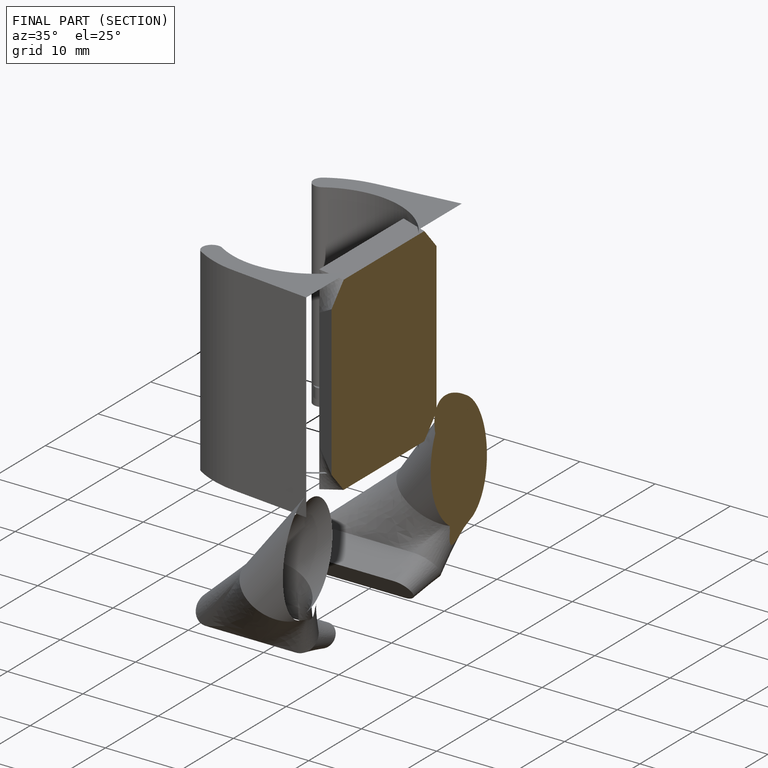
[diagram: finished part — half-section view (interior)]
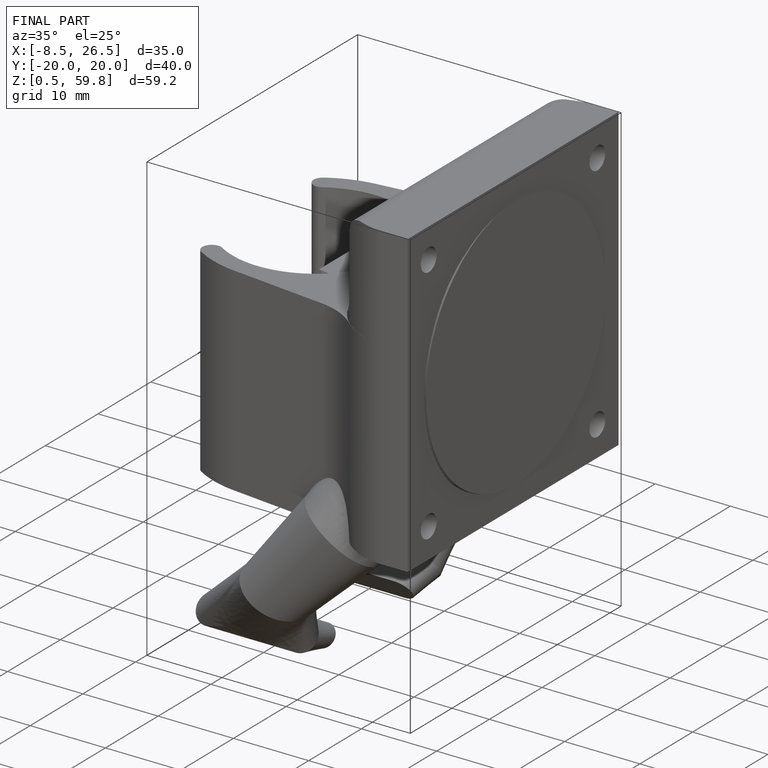
[diagram: finished part — iso view with bounding-box wireframe]
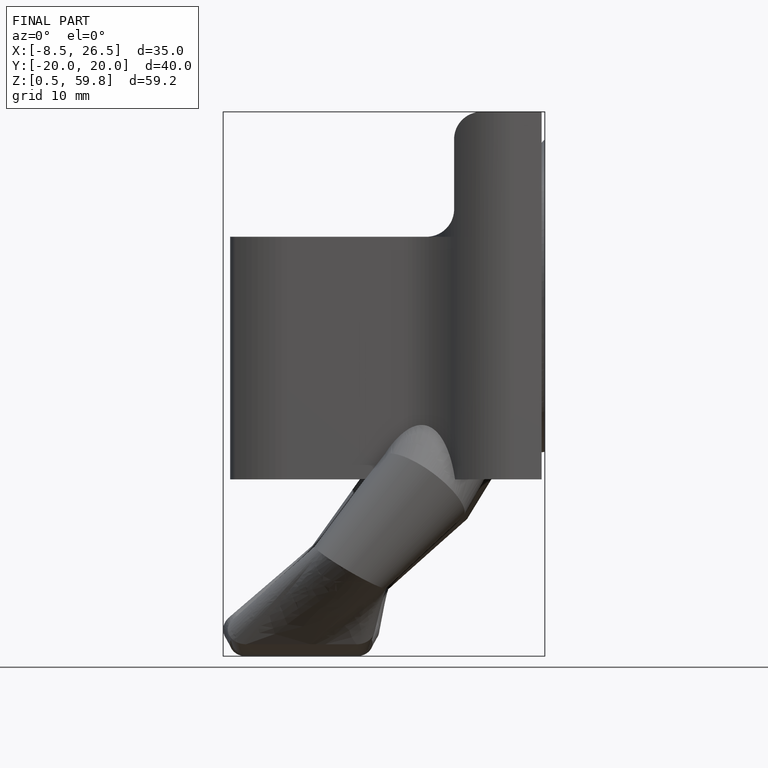
[diagram: finished part — front view with bounding-box wireframe]
